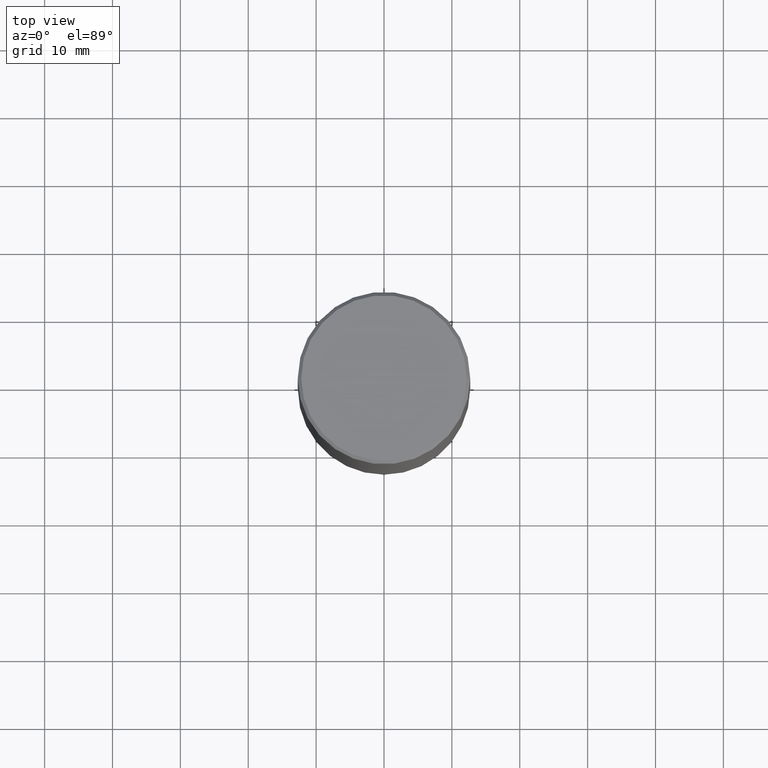
[diagram: clean part render]
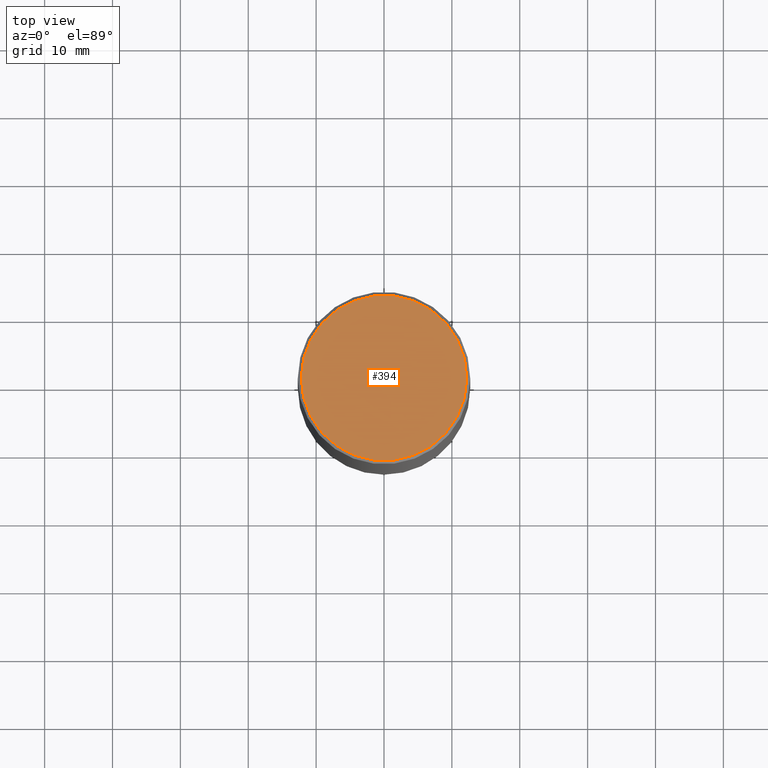
[diagram: same view with one face highlighted and labeled with its STEP entity id]
A machine part, top view. The second image highlights one B-rep face of the part: STEP entity #394.
In plain terms, the highlighted planar face has unit normal (0, -0, -1).
Its self-contained STEP definition (entity closure, byte-faithful):
#18 = CARTESIAN_POINT ( 'NONE',  ( 0.4800000000000003708, -3.396558832296484071E-15, -3.628235616585113699E-16 ) ) ;
#36 = EDGE_CURVE ( 'NONE', #338, #282, #66, .T. ) ;
#48 = DIRECTION ( 'NONE',  ( 1.000000000000000000, -6.982962677686266711E-15, 4.878011538933546479E-29 ) ) ;
#66 = CIRCLE ( 'NONE', #104, 0.4800000000000003708 ) ;
#104 = AXIS2_PLACEMENT_3D ( 'NONE', #349, #123, #320 ) ;
#116 = CARTESIAN_POINT ( 'NONE',  ( 8.872737021849368446E-45, -1.266791694823380303E-30, -3.628235616585349371E-16 ) ) ;
#123 = DIRECTION ( 'NONE',  ( -2.445468806185136597E-29, 3.491481338843145583E-15, 1.000000000000000000 ) ) ;
#142 = AXIS2_PLACEMENT_3D ( 'NONE', #116, #378, #48 ) ;
#144 = CARTESIAN_POINT ( 'NONE',  ( -0.4800000000000003708, 3.386736898677839197E-15, -3.628235616585585043E-16 ) ) ;
#145 = DIRECTION ( 'NONE',  ( 2.438088387897960049E-29, -3.491481338843145188E-15, -1.000000000000000000 ) ) ;
#147 = EDGE_LOOP ( 'NONE', ( #155, #373 ) ) ;
#149 = PLANE ( 'NONE',  #214 ) ;
#154 = DIRECTION ( 'NONE',  ( -1.000000000000000000, 6.982962677686265922E-15, -4.876176775795935793E-29 ) ) ;
#155 = ORIENTED_EDGE ( 'NONE', *, *, #316, .T. ) ;
#214 = AXIS2_PLACEMENT_3D ( 'NONE', #376, #145, #154 ) ;
#218 = FACE_OUTER_BOUND ( 'NONE', #147, .T. ) ;
#228 = CIRCLE ( 'NONE', #142, 0.4800000000000003708 ) ;
#282 = VERTEX_POINT ( 'NONE', #144 ) ;
#316 = EDGE_CURVE ( 'NONE', #282, #338, #228, .T. ) ;
#320 = DIRECTION ( 'NONE',  ( 1.000000000000000000, -6.982962677686266711E-15, 4.878011538933546479E-29 ) ) ;
#338 = VERTEX_POINT ( 'NONE', #18 ) ;
#349 = CARTESIAN_POINT ( 'NONE',  ( 8.872737021849368446E-45, -1.266791694823380303E-30, -3.628235616585349371E-16 ) ) ;
#373 = ORIENTED_EDGE ( 'NONE', *, *, #36, .T. ) ;
#376 = CARTESIAN_POINT ( 'NONE',  ( 3.351822085289410309E-15, 0.4800000000000003708, -1.857322823473978811E-15 ) ) ;
#378 = DIRECTION ( 'NONE',  ( -2.445468806185136597E-29, 3.491481338843145583E-15, 1.000000000000000000 ) ) ;
#394 = ADVANCED_FACE ( 'NONE', ( #218 ), #149, .F. ) ;